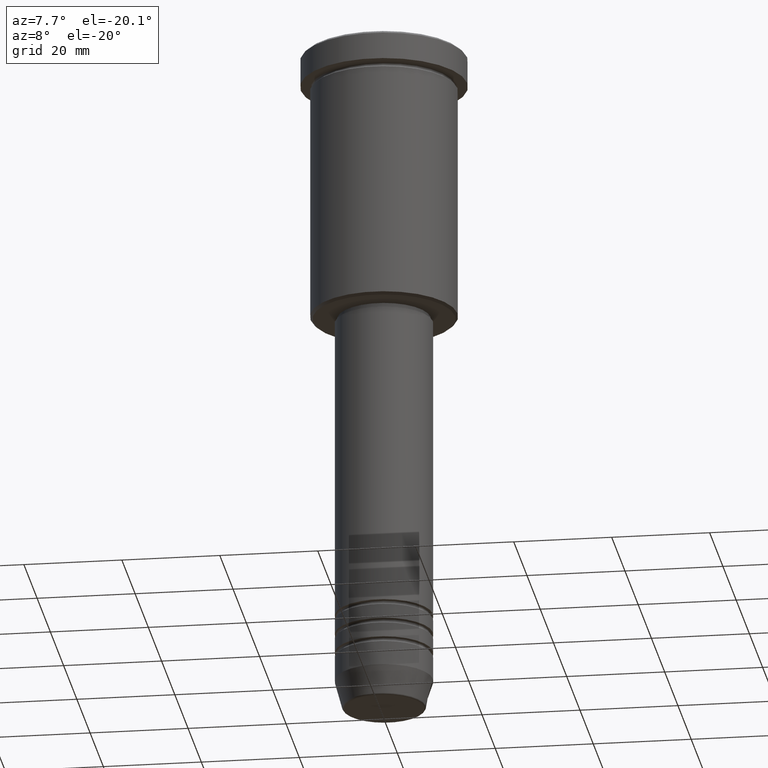
[diagram: clean part render]
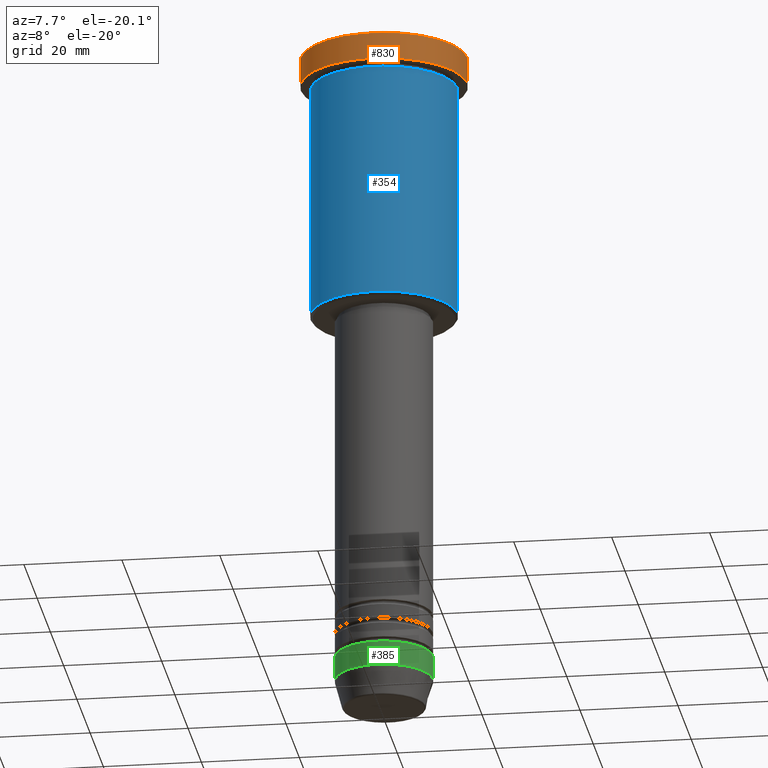
[diagram: same view with three faces highlighted in distinct colors, each labeled with its STEP entity id]
A machine part, auxiliary view with three faces highlighted in distinct colors.
Their STEP definitions:

[orange] entity #830 — the highlighted cylindrical surface (partial cylindrical patch) has radius 17 mm, axis along (-0, -0, 1).
#19 = DIRECTION ( 'NONE',  ( 1.000000000000000000, 0.000000000000000000, 0.000000000000000000 ) ) ;
#41 = DIRECTION ( 'NONE',  ( 1.000000000000000000, 0.000000000000000000, 0.000000000000000000 ) ) ;
#67 = VERTEX_POINT ( 'NONE', #115 ) ;
#68 = LINE ( 'NONE', #633, #1049 ) ;
#81 = DIRECTION ( 'NONE',  ( -0.000000000000000000, -0.000000000000000000, 1.000000000000000000 ) ) ;
#115 = CARTESIAN_POINT ( 'NONE',  ( 17.00000000000000000, 0.000000000000000000, -0.5000000000000350830 ) ) ;
#156 = FACE_OUTER_BOUND ( 'NONE', #1107, .T. ) ;
#206 = AXIS2_PLACEMENT_3D ( 'NONE', #514, #868, #41 ) ;
#269 = CARTESIAN_POINT ( 'NONE',  ( -17.00000000000000000, 2.081899558550500280E-15, -5.999999999999994671 ) ) ;
#275 = DIRECTION ( 'NONE',  ( 1.000000000000000000, 0.000000000000000000, 0.000000000000000000 ) ) ;
#297 = EDGE_CURVE ( 'NONE', #390, #1078, #68, .T. ) ;
#352 = CIRCLE ( 'NONE', #735, 17.00000000000000000 ) ;
#383 = VECTOR ( 'NONE', #473, 1000.000000000000000 ) ;
#390 = VERTEX_POINT ( 'NONE', #269 ) ;
#454 = CARTESIAN_POINT ( 'NONE',  ( 17.00000000000000000, 0.000000000000000000, 0.000000000000000000 ) ) ;
#473 = DIRECTION ( 'NONE',  ( -0.000000000000000000, -0.000000000000000000, 1.000000000000000000 ) ) ;
#513 = EDGE_CURVE ( 'NONE', #390, #1117, #352, .T. ) ;
#514 = CARTESIAN_POINT ( 'NONE',  ( 0.000000000000000000, 0.000000000000000000, -0.5000000000000350830 ) ) ;
#556 = CYLINDRICAL_SURFACE ( 'NONE', #894, 17.00000000000000000 ) ;
#633 = CARTESIAN_POINT ( 'NONE',  ( -17.00000000000000000, 2.081899558550500280E-15, 0.000000000000000000 ) ) ;
#648 = CARTESIAN_POINT ( 'NONE',  ( 17.00000000000000000, 0.000000000000000000, -5.999999999999994671 ) ) ;
#669 = CARTESIAN_POINT ( 'NONE',  ( 0.000000000000000000, 0.000000000000000000, -5.999999999999994671 ) ) ;
#678 = EDGE_CURVE ( 'NONE', #67, #1078, #871, .T. ) ;
#711 = ORIENTED_EDGE ( 'NONE', *, *, #513, .T. ) ;
#735 = AXIS2_PLACEMENT_3D ( 'NONE', #669, #851, #19 ) ;
#794 = ORIENTED_EDGE ( 'NONE', *, *, #297, .F. ) ;
#804 = DIRECTION ( 'NONE',  ( -0.000000000000000000, -0.000000000000000000, 1.000000000000000000 ) ) ;
#830 = ADVANCED_FACE ( 'NONE', ( #156 ), #556, .T. ) ;
#851 = DIRECTION ( 'NONE',  ( -0.000000000000000000, -0.000000000000000000, 1.000000000000000000 ) ) ;
#868 = DIRECTION ( 'NONE',  ( 0.000000000000000000, 0.000000000000000000, -1.000000000000000000 ) ) ;
#871 = CIRCLE ( 'NONE', #206, 17.00000000000000000 ) ;
#894 = AXIS2_PLACEMENT_3D ( 'NONE', #997, #81, #275 ) ;
#912 = LINE ( 'NONE', #454, #383 ) ;
#997 = CARTESIAN_POINT ( 'NONE',  ( 0.000000000000000000, 0.000000000000000000, 0.000000000000000000 ) ) ;
#1037 = EDGE_CURVE ( 'NONE', #1117, #67, #912, .T. ) ;
#1049 = VECTOR ( 'NONE', #804, 1000.000000000000000 ) ;
#1078 = VERTEX_POINT ( 'NONE', #1100 ) ;
#1100 = CARTESIAN_POINT ( 'NONE',  ( -17.00000000000000000, 2.081899558550500280E-15, -0.5000000000000350830 ) ) ;
#1107 = EDGE_LOOP ( 'NONE', ( #794, #711, #1151, #1173 ) ) ;
#1117 = VERTEX_POINT ( 'NONE', #648 ) ;
#1151 = ORIENTED_EDGE ( 'NONE', *, *, #1037, .T. ) ;
#1173 = ORIENTED_EDGE ( 'NONE', *, *, #678, .T. ) ;

[blue] entity #354 — the highlighted cylindrical surface (partial cylindrical patch) has radius 15 mm, axis along (-0, -0, 1).
#17 = EDGE_CURVE ( 'NONE', #620, #1023, #974, .T. ) ;
#24 = ORIENTED_EDGE ( 'NONE', *, *, #1047, .T. ) ;
#48 = AXIS2_PLACEMENT_3D ( 'NONE', #379, #1128, #298 ) ;
#128 = AXIS2_PLACEMENT_3D ( 'NONE', #543, #260, #450 ) ;
#164 = CYLINDRICAL_SURFACE ( 'NONE', #979, 15.00000000000000000 ) ;
#260 = DIRECTION ( 'NONE',  ( -0.000000000000000000, -0.000000000000000000, 1.000000000000000000 ) ) ;
#274 = EDGE_LOOP ( 'NONE', ( #323, #435, #24, #655 ) ) ;
#298 = DIRECTION ( 'NONE',  ( 1.000000000000000000, 0.000000000000000000, 0.000000000000000000 ) ) ;
#323 = ORIENTED_EDGE ( 'NONE', *, *, #1179, .F. ) ;
#354 = ADVANCED_FACE ( 'NONE', ( #553 ), #164, .T. ) ;
#357 = CARTESIAN_POINT ( 'NONE',  ( 15.00000000000000000, 0.000000000000000000, 0.000000000000000000 ) ) ;
#379 = CARTESIAN_POINT ( 'NONE',  ( 0.000000000000000000, 0.000000000000000000, -6.999999999999995559 ) ) ;
#380 = LINE ( 'NONE', #482, #1044 ) ;
#435 = ORIENTED_EDGE ( 'NONE', *, *, #756, .T. ) ;
#447 = DIRECTION ( 'NONE',  ( -0.000000000000000000, -0.000000000000000000, 1.000000000000000000 ) ) ;
#450 = DIRECTION ( 'NONE',  ( -1.000000000000000000, 0.000000000000000000, 0.000000000000000000 ) ) ;
#482 = CARTESIAN_POINT ( 'NONE',  ( -15.00000000000000000, 1.836970198721029589E-15, 0.000000000000000000 ) ) ;
#520 = CIRCLE ( 'NONE', #128, 15.00000000000000000 ) ;
#543 = CARTESIAN_POINT ( 'NONE',  ( 0.000000000000000000, 0.000000000000000000, -55.50000000000002132 ) ) ;
#553 = FACE_OUTER_BOUND ( 'NONE', #274, .T. ) ;
#620 = VERTEX_POINT ( 'NONE', #880 ) ;
#645 = CARTESIAN_POINT ( 'NONE',  ( 15.00000000000000000, 0.000000000000000000, -55.50000000000002132 ) ) ;
#653 = DIRECTION ( 'NONE',  ( -0.000000000000000000, -0.000000000000000000, 1.000000000000000000 ) ) ;
#655 = ORIENTED_EDGE ( 'NONE', *, *, #17, .F. ) ;
#729 = CARTESIAN_POINT ( 'NONE',  ( -15.00000000000000000, 1.836970198721029589E-15, -55.50000000000002132 ) ) ;
#739 = DIRECTION ( 'NONE',  ( -0.000000000000000000, -0.000000000000000000, 1.000000000000000000 ) ) ;
#740 = LINE ( 'NONE', #357, #762 ) ;
#756 = EDGE_CURVE ( 'NONE', #760, #835, #520, .T. ) ;
#760 = VERTEX_POINT ( 'NONE', #729 ) ;
#762 = VECTOR ( 'NONE', #447, 1000.000000000000000 ) ;
#835 = VERTEX_POINT ( 'NONE', #645 ) ;
#880 = CARTESIAN_POINT ( 'NONE',  ( -15.00000000000000000, 1.836970198721029589E-15, -6.999999999999995559 ) ) ;
#890 = CARTESIAN_POINT ( 'NONE',  ( 0.000000000000000000, 0.000000000000000000, 0.000000000000000000 ) ) ;
#974 = CIRCLE ( 'NONE', #48, 15.00000000000000000 ) ;
#979 = AXIS2_PLACEMENT_3D ( 'NONE', #890, #739, #1081 ) ;
#1023 = VERTEX_POINT ( 'NONE', #1166 ) ;
#1044 = VECTOR ( 'NONE', #653, 1000.000000000000000 ) ;
#1047 = EDGE_CURVE ( 'NONE', #835, #1023, #740, .T. ) ;
#1081 = DIRECTION ( 'NONE',  ( 1.000000000000000000, 0.000000000000000000, 0.000000000000000000 ) ) ;
#1128 = DIRECTION ( 'NONE',  ( -0.000000000000000000, -0.000000000000000000, 1.000000000000000000 ) ) ;
#1166 = CARTESIAN_POINT ( 'NONE',  ( 15.00000000000000000, 0.000000000000000000, -6.999999999999995559 ) ) ;
#1179 = EDGE_CURVE ( 'NONE', #760, #620, #380, .T. ) ;

[green] entity #385 — the highlighted cylindrical surface (partial cylindrical patch) has radius 10 mm, axis along (-0, -0, 1).
#23 = DIRECTION ( 'NONE',  ( -0.000000000000000000, -0.000000000000000000, 1.000000000000000000 ) ) ;
#27 = EDGE_CURVE ( 'NONE', #84, #965, #928, .T. ) ;
#28 = DIRECTION ( 'NONE',  ( 1.000000000000000000, 0.000000000000000000, 0.000000000000000000 ) ) ;
#84 = VERTEX_POINT ( 'NONE', #831 ) ;
#101 = EDGE_CURVE ( 'NONE', #84, #764, #429, .T. ) ;
#107 = CIRCLE ( 'NONE', #972, 10.00000000000000000 ) ;
#234 = CARTESIAN_POINT ( 'NONE',  ( 0.000000000000000000, 0.000000000000000000, -129.0000000000000000 ) ) ;
#328 = ORIENTED_EDGE ( 'NONE', *, *, #101, .T. ) ;
#329 = AXIS2_PLACEMENT_3D ( 'NONE', #916, #811, #1085 ) ;
#374 = CARTESIAN_POINT ( 'NONE',  ( 10.00000000000000178, 0.000000000000000000, 0.000000000000000000 ) ) ;
#385 = ADVANCED_FACE ( 'NONE', ( #546 ), #458, .T. ) ;
#414 = EDGE_CURVE ( 'NONE', #764, #1108, #463, .T. ) ;
#429 = CIRCLE ( 'NONE', #920, 10.00000000000000178 ) ;
#458 = CYLINDRICAL_SURFACE ( 'NONE', #329, 10.00000000000000178 ) ;
#463 = LINE ( 'NONE', #374, #585 ) ;
#529 = CARTESIAN_POINT ( 'NONE',  ( 10.00000000000000178, 0.000000000000000000, -134.0000000000000000 ) ) ;
#546 = FACE_OUTER_BOUND ( 'NONE', #1156, .T. ) ;
#585 = VECTOR ( 'NONE', #23, 1000.000000000000000 ) ;
#593 = ORIENTED_EDGE ( 'NONE', *, *, #414, .T. ) ;
#605 = DIRECTION ( 'NONE',  ( -0.000000000000000000, -0.000000000000000000, 1.000000000000000000 ) ) ;
#736 = CARTESIAN_POINT ( 'NONE',  ( 10.00000000000000000, 0.000000000000000000, -129.0000000000000000 ) ) ;
#738 = ORIENTED_EDGE ( 'NONE', *, *, #898, .F. ) ;
#744 = DIRECTION ( 'NONE',  ( -0.000000000000000000, -0.000000000000000000, 1.000000000000000000 ) ) ;
#764 = VERTEX_POINT ( 'NONE', #529 ) ;
#811 = DIRECTION ( 'NONE',  ( -0.000000000000000000, -0.000000000000000000, 1.000000000000000000 ) ) ;
#831 = CARTESIAN_POINT ( 'NONE',  ( -10.00000000000000178, 1.224646799147353454E-15, -134.0000000000000000 ) ) ;
#852 = CARTESIAN_POINT ( 'NONE',  ( 0.000000000000000000, 0.000000000000000000, -134.0000000000000000 ) ) ;
#898 = EDGE_CURVE ( 'NONE', #965, #1108, #107, .T. ) ;
#900 = VECTOR ( 'NONE', #940, 1000.000000000000000 ) ;
#916 = CARTESIAN_POINT ( 'NONE',  ( 0.000000000000000000, 0.000000000000000000, 0.000000000000000000 ) ) ;
#920 = AXIS2_PLACEMENT_3D ( 'NONE', #852, #744, #28 ) ;
#928 = LINE ( 'NONE', #933, #900 ) ;
#933 = CARTESIAN_POINT ( 'NONE',  ( -10.00000000000000178, 1.224646799147353454E-15, 0.000000000000000000 ) ) ;
#940 = DIRECTION ( 'NONE',  ( -0.000000000000000000, -0.000000000000000000, 1.000000000000000000 ) ) ;
#962 = DIRECTION ( 'NONE',  ( 1.000000000000000000, 0.000000000000000000, 0.000000000000000000 ) ) ;
#965 = VERTEX_POINT ( 'NONE', #968 ) ;
#968 = CARTESIAN_POINT ( 'NONE',  ( -10.00000000000000000, 1.224646799147353256E-15, -129.0000000000000000 ) ) ;
#972 = AXIS2_PLACEMENT_3D ( 'NONE', #234, #605, #962 ) ;
#1085 = DIRECTION ( 'NONE',  ( 1.000000000000000000, 0.000000000000000000, 0.000000000000000000 ) ) ;
#1108 = VERTEX_POINT ( 'NONE', #736 ) ;
#1112 = ORIENTED_EDGE ( 'NONE', *, *, #27, .F. ) ;
#1156 = EDGE_LOOP ( 'NONE', ( #1112, #328, #593, #738 ) ) ;